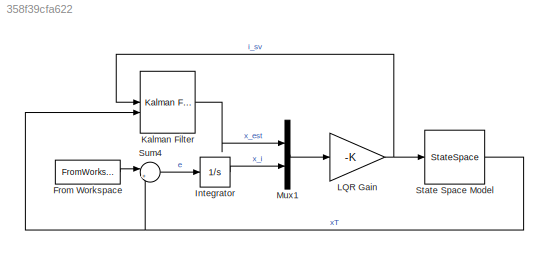
MODEL slx_358f39cfa622
KIND model
CONFIG AbsTol = auto
CONFIG EnableMultiTasking = on
CONFIG FixedStep = auto
CONFIG MaxStep = auto
CONFIG MinStep = auto
CONFIG RelTol = 1e-3
CONFIG SampleTimeConstraint = Unconstrained
CONFIG SolverName = ode45
CONFIG StartTime = 0.0
CONFIG StopTime = 20
BLOCK [FromWorkspace] From Workspace
  VariableName = x_ref
BLOCK [Integrator] Integrator
BLOCK [Reference] Kalman Filter  REF=ctrlSharedLib/Kalman Filter
  LibrarySourceBlock = cstblocks/State Estimation/Kalman Filter
  SourceBlock = ctrlSharedLib/Kalman Filter
  SourceType = ctrlKalmanFilter
BLOCK [Gain] LQR Gain
  Gain = -K
  Multiplication = Matrix(K*u)
  OutDataTypeStr = Inherit: Same as input
  ParamDataTypeStr = Inherit: Same as input
  SaturateOnIntegerOverflow = on
BLOCK [Mux] Mux1
  DisplayOption = bar
  Inputs = 2
  NameLocation = top
BLOCK [StateSpace] State Space Model
  A = AA
  B = BB
  C = CC
  D = DD
  InitialCondition = 0
BLOCK [Sum] Sum4
  InputSameDT = on
  Inputs = |+-
  OutDataTypeStr = Inherit: Same as first input
  SaturateOnIntegerOverflow = on
LINE From Workspace:1 -> Sum4:1
LINE Integrator:1 -> Mux1:2
LINE Kalman Filter:1 -> Mux1:1
NET LQR Gain:1 -> Kalman Filter:1, State Space Model:1
LINE Mux1:1 -> LQR Gain:1
NET State Space Model:1 -> Kalman Filter:2, Sum4:2
LINE Sum4:1 -> Integrator:1
note: NET lines group one-source signal fan-out (src -> all destinations, sorted); 1:1 wires keep LINE
